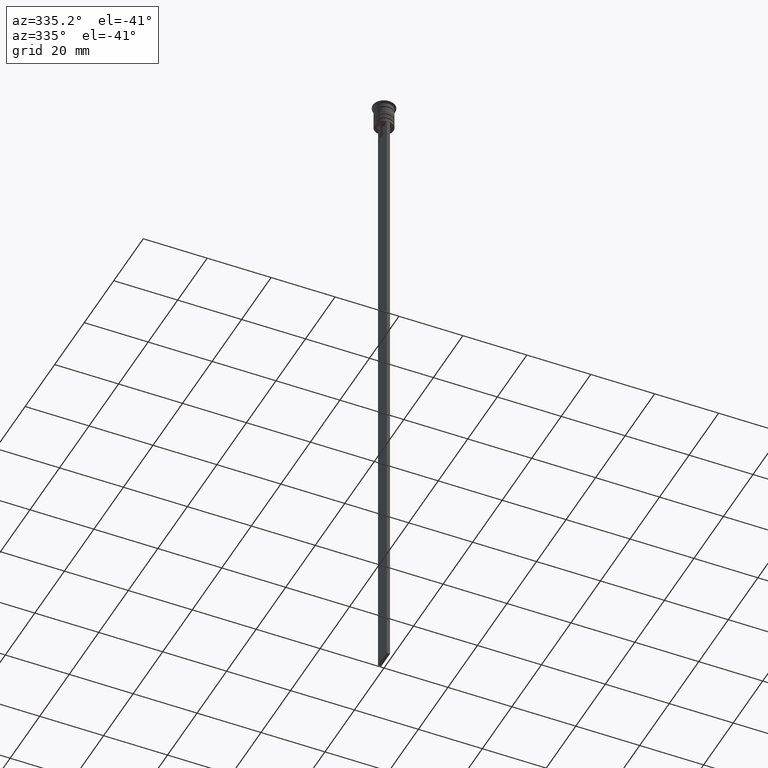
[diagram: clean part render]
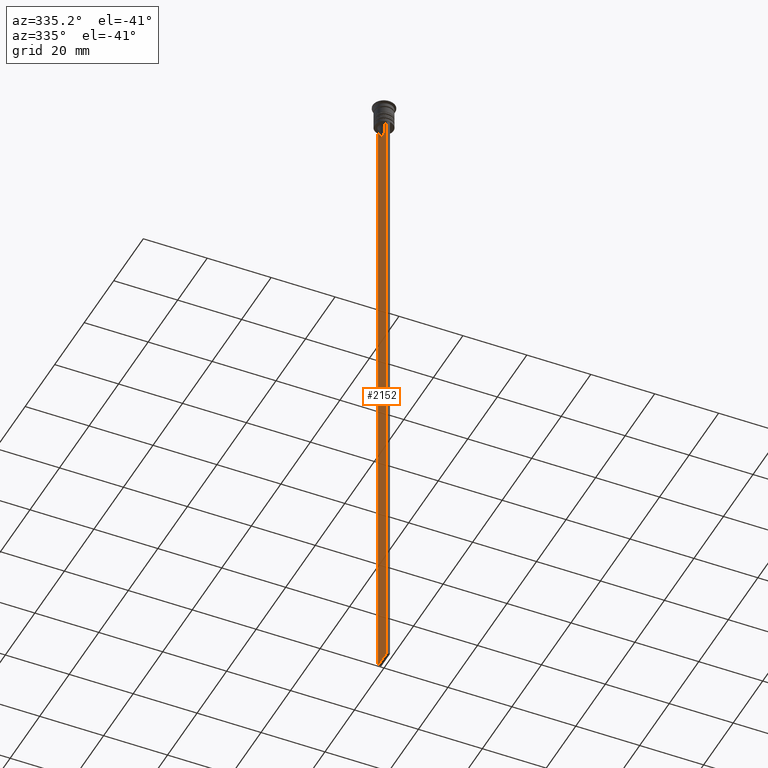
[diagram: same view with one face highlighted and labeled with its STEP entity id]
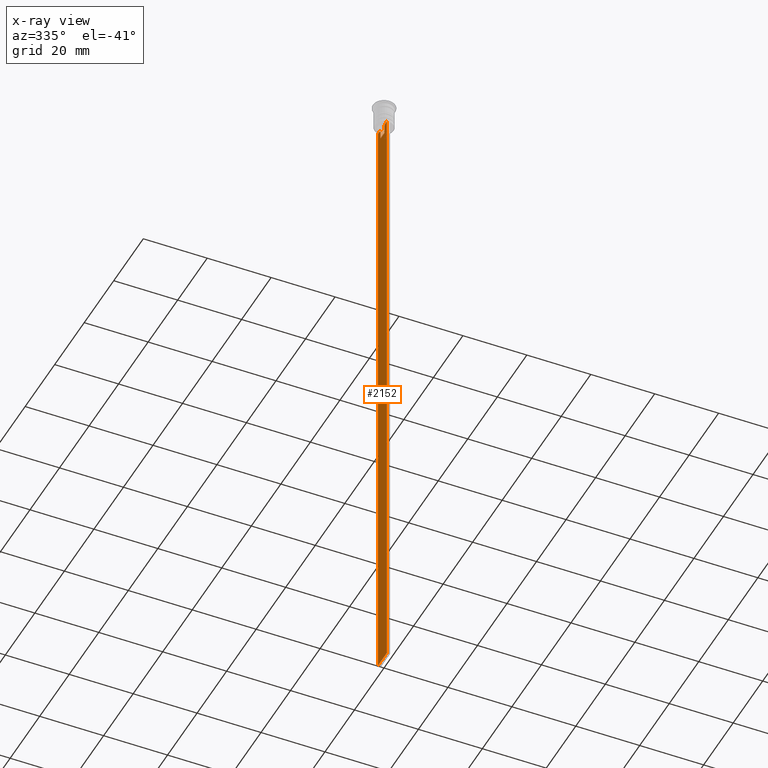
[diagram: x-ray of the same camera — body ghosted, the highlighted face saturated]
A machine part, auxiliary view. The second image highlights one B-rep face of the part: STEP entity #2152.
The next image is the same camera in x-ray: the body ghosted, the highlighted face saturated — about 0% of this face is hidden behind the body in this view.
In plain terms, the highlighted planar face has unit normal (-1, 0, 0).
Its self-contained STEP definition (entity closure, byte-faithful):
#56 = CARTESIAN_POINT ( 'NONE',  ( -0.5000000000000001110, 1.307669683062199217, -8.000000000000000000 ) ) ;
#90 = CARTESIAN_POINT ( 'NONE',  ( -0.5000000000000001110, -1.833030277982335532, -7.500000000000000000 ) ) ;
#105 = CARTESIAN_POINT ( 'NONE',  ( -0.5000000000000001110, 1.307669683062199217, -10.49999999999999822 ) ) ;
#111 = VERTEX_POINT ( 'NONE', #1236 ) ;
#112 = EDGE_CURVE ( 'NONE', #1044, #1480, #1401, .T. ) ;
#158 = CARTESIAN_POINT ( 'NONE',  ( -0.5000000000000001110, -3.000000000000000000, -7.500000000000000000 ) ) ;
#199 = B_SPLINE_CURVE_WITH_KNOTS ( 'NONE', 3,
 ( #1186, #786, #236, #90 ),
 .UNSPECIFIED., .F., .F.,
 ( 4, 4 ),
 ( 0.007225659348748070081, 0.007950554640278040958 ),
 .UNSPECIFIED. ) ;
#236 = CARTESIAN_POINT ( 'NONE',  ( -0.5000000000000001110, -1.659011726860414093, -7.667884880598472286 ) ) ;
#265 = DIRECTION ( 'NONE',  ( 0.000000000000000000, 0.000000000000000000, -1.000000000000000000 ) ) ;
#321 = VERTEX_POINT ( 'NONE', #1097 ) ;
#327 = EDGE_CURVE ( 'NONE', #1890, #321, #928, .T. ) ;
#358 = VERTEX_POINT ( 'NONE', #105 ) ;
#360 = VECTOR ( 'NONE', #709, 1000.000000000000000 ) ;
#373 = EDGE_CURVE ( 'NONE', #358, #1044, #1485, .T. ) ;
#401 = LINE ( 'NONE', #960, #2316 ) ;
#405 = VECTOR ( 'NONE', #2148, 1000.000000000000000 ) ;
#415 = VERTEX_POINT ( 'NONE', #633 ) ;
#483 = DIRECTION ( 'NONE',  ( 0.000000000000000000, -1.000000000000000000, 0.000000000000000000 ) ) ;
#498 = ORIENTED_EDGE ( 'NONE', *, *, #1168, .F. ) ;
#533 = CARTESIAN_POINT ( 'NONE',  ( -0.5000000000000001110, 3.000000000000000000, -1.417237469701779329 ) ) ;
#543 = ORIENTED_EDGE ( 'NONE', *, *, #1146, .F. ) ;
#584 = LINE ( 'NONE', #790, #1493 ) ;
#586 = EDGE_CURVE ( 'NONE', #1890, #2274, #1594, .T. ) ;
#605 = CARTESIAN_POINT ( 'NONE',  ( -0.5000000000000001110, -3.000000000000000000, -7.500000000000000000 ) ) ;
#606 = VERTEX_POINT ( 'NONE', #1571 ) ;
#632 = LINE ( 'NONE', #1882, #2244 ) ;
#633 = CARTESIAN_POINT ( 'NONE',  ( -0.5000000000000001110, -2.856571371417139904, -7.500000000000000000 ) ) ;
#639 = ORIENTED_EDGE ( 'NONE', *, *, #327, .T. ) ;
#679 = ORIENTED_EDGE ( 'NONE', *, *, #815, .F. ) ;
#709 = DIRECTION ( 'NONE',  ( 0.000000000000000000, -1.000000000000000000, 0.000000000000000000 ) ) ;
#710 = EDGE_LOOP ( 'NONE', ( #2284, #1847, #2029, #639, #543, #1280, #1670, #498, #1616, #1071, #2313, #679 ) ) ;
#726 = DIRECTION ( 'NONE',  ( 0.000000000000000000, 0.000000000000000000, -1.000000000000000000 ) ) ;
#731 = VECTOR ( 'NONE', #726, 1000.000000000000000 ) ;
#754 = LINE ( 'NONE', #605, #2237 ) ;
#786 = CARTESIAN_POINT ( 'NONE',  ( -0.5000000000000001110, -1.484307477388859153, -7.835011508197190722 ) ) ;
#790 = CARTESIAN_POINT ( 'NONE',  ( -0.5000000000000001110, 1.307669683062199217, 0.000000000000000000 ) ) ;
#815 = EDGE_CURVE ( 'NONE', #2048, #358, #584, .T. ) ;
#837 = DIRECTION ( 'NONE',  ( 0.000000000000000000, 0.000000000000000000, 1.000000000000000000 ) ) ;
#844 = DIRECTION ( 'NONE',  ( -0.000000000000000000, -0.000000000000000000, 1.000000000000000000 ) ) ;
#846 = AXIS2_PLACEMENT_3D ( 'NONE', #1507, #1323, #837 ) ;
#861 = CARTESIAN_POINT ( 'NONE',  ( -0.5000000000000001110, -1.307669683062199217, -10.49999999999999822 ) ) ;
#866 = CARTESIAN_POINT ( 'NONE',  ( -0.5000000000000001110, -1.307669683062199217, 0.000000000000000000 ) ) ;
#872 = LINE ( 'NONE', #1424, #405 ) ;
#928 = LINE ( 'NONE', #533, #731 ) ;
#945 = FACE_OUTER_BOUND ( 'NONE', #710, .T. ) ;
#960 = CARTESIAN_POINT ( 'NONE',  ( -0.5000000000000001110, -3.000000000000000000, -7.500000000000000000 ) ) ;
#1005 = CARTESIAN_POINT ( 'NONE',  ( -0.5000000000000001110, -3.000000000000000000, -7.500000000000000000 ) ) ;
#1019 = LINE ( 'NONE', #158, #360 ) ;
#1044 = VERTEX_POINT ( 'NONE', #861 ) ;
#1071 = ORIENTED_EDGE ( 'NONE', *, *, #112, .F. ) ;
#1097 = CARTESIAN_POINT ( 'NONE',  ( -0.5000000000000001110, 3.000000000000000000, -207.5000000000000284 ) ) ;
#1098 = CARTESIAN_POINT ( 'NONE',  ( -0.5000000000000001110, -1.307669683062199217, -8.000000000000000000 ) ) ;
#1146 = EDGE_CURVE ( 'NONE', #1389, #321, #872, .T. ) ;
#1160 = DIRECTION ( 'NONE',  ( 0.000000000000000000, -1.000000000000000000, 0.000000000000000000 ) ) ;
#1168 = EDGE_CURVE ( 'NONE', #1564, #415, #754, .T. ) ;
#1182 = VECTOR ( 'NONE', #483, 1000.000000000000000 ) ;
#1186 = CARTESIAN_POINT ( 'NONE',  ( -0.5000000000000001110, -1.307669683062199217, -8.000000000000000000 ) ) ;
#1236 = CARTESIAN_POINT ( 'NONE',  ( -0.5000000000000001110, -3.000000000000000000, -7.500000000000000000 ) ) ;
#1237 = CARTESIAN_POINT ( 'NONE',  ( -0.5000000000000001110, 1.659046061654642523, -7.667851756010361619 ) ) ;
#1280 = ORIENTED_EDGE ( 'NONE', *, *, #2064, .F. ) ;
#1320 = EDGE_CURVE ( 'NONE', #2274, #606, #1019, .T. ) ;
#1323 = DIRECTION ( 'NONE',  ( -1.000000000000000000, 0.000000000000000000, 0.000000000000000000 ) ) ;
#1337 = DIRECTION ( 'NONE',  ( 0.000000000000000000, -1.000000000000000000, 0.000000000000000000 ) ) ;
#1389 = VERTEX_POINT ( 'NONE', #2105 ) ;
#1401 = LINE ( 'NONE', #866, #2017 ) ;
#1403 = EDGE_CURVE ( 'NONE', #606, #2048, #1918, .T. ) ;
#1424 = CARTESIAN_POINT ( 'NONE',  ( -0.5000000000000001110, -3.000000000000000000, -207.5000000000000284 ) ) ;
#1437 = CARTESIAN_POINT ( 'NONE',  ( -0.5000000000000001110, 3.000000000000000000, -7.500000000000000000 ) ) ;
#1480 = VERTEX_POINT ( 'NONE', #1098 ) ;
#1485 = LINE ( 'NONE', #1518, #2279 ) ;
#1493 = VECTOR ( 'NONE', #1686, 1000.000000000000000 ) ;
#1507 = CARTESIAN_POINT ( 'NONE',  ( -0.5000000000000001110, -3.000000000000000000, -1.417237469701779329 ) ) ;
#1513 = DIRECTION ( 'NONE',  ( 0.000000000000000000, -1.000000000000000000, 0.000000000000000000 ) ) ;
#1518 = CARTESIAN_POINT ( 'NONE',  ( -0.5000000000000001110, 1.399999999999997691, -10.49999999999999822 ) ) ;
#1564 = VERTEX_POINT ( 'NONE', #2022 ) ;
#1571 = CARTESIAN_POINT ( 'NONE',  ( -0.5000000000000001110, 1.833030277982335532, -7.500000000000000000 ) ) ;
#1594 = LINE ( 'NONE', #1005, #1182 ) ;
#1616 = ORIENTED_EDGE ( 'NONE', *, *, #1669, .F. ) ;
#1669 = EDGE_CURVE ( 'NONE', #1480, #1564, #199, .T. ) ;
#1670 = ORIENTED_EDGE ( 'NONE', *, *, #2015, .F. ) ;
#1673 = PLANE ( 'NONE',  #846 ) ;
#1686 = DIRECTION ( 'NONE',  ( 0.000000000000000000, 0.000000000000000000, -1.000000000000000000 ) ) ;
#1795 = CARTESIAN_POINT ( 'NONE',  ( -0.5000000000000001110, 1.307669683062199217, -8.000000000000000000 ) ) ;
#1847 = ORIENTED_EDGE ( 'NONE', *, *, #1320, .F. ) ;
#1882 = CARTESIAN_POINT ( 'NONE',  ( -0.5000000000000001110, -3.000000000000000000, -1.417237469701779329 ) ) ;
#1890 = VERTEX_POINT ( 'NONE', #1437 ) ;
#1918 = B_SPLINE_CURVE_WITH_KNOTS ( 'NONE', 3,
 ( #2115, #1237, #1964, #1795 ),
 .UNSPECIFIED., .F., .F.,
 ( 4, 4 ),
 ( 0.003278537493109840491, 0.004003794023484932504 ),
 .UNSPECIFIED. ) ;
#1964 = CARTESIAN_POINT ( 'NONE',  ( -0.5000000000000001110, 1.484355510416485391, -7.834966642958598015 ) ) ;
#2015 = EDGE_CURVE ( 'NONE', #415, #111, #401, .T. ) ;
#2017 = VECTOR ( 'NONE', #844, 1000.000000000000000 ) ;
#2022 = CARTESIAN_POINT ( 'NONE',  ( -0.5000000000000001110, -1.833030277982335532, -7.500000000000000000 ) ) ;
#2029 = ORIENTED_EDGE ( 'NONE', *, *, #586, .F. ) ;
#2048 = VERTEX_POINT ( 'NONE', #56 ) ;
#2064 = EDGE_CURVE ( 'NONE', #111, #1389, #632, .T. ) ;
#2105 = CARTESIAN_POINT ( 'NONE',  ( -0.5000000000000001110, -3.000000000000000000, -207.5000000000000284 ) ) ;
#2115 = CARTESIAN_POINT ( 'NONE',  ( -0.5000000000000001110, 1.833030277982335532, -7.500000000000000000 ) ) ;
#2148 = DIRECTION ( 'NONE',  ( 0.000000000000000000, 1.000000000000000000, 0.000000000000000000 ) ) ;
#2152 = ADVANCED_FACE ( 'NONE', ( #945 ), #1673, .T. ) ;
#2190 = CARTESIAN_POINT ( 'NONE',  ( -0.5000000000000001110, 2.856571371417139904, -7.500000000000000000 ) ) ;
#2237 = VECTOR ( 'NONE', #1513, 1000.000000000000000 ) ;
#2244 = VECTOR ( 'NONE', #265, 1000.000000000000000 ) ;
#2274 = VERTEX_POINT ( 'NONE', #2190 ) ;
#2279 = VECTOR ( 'NONE', #1160, 1000.000000000000000 ) ;
#2284 = ORIENTED_EDGE ( 'NONE', *, *, #1403, .F. ) ;
#2313 = ORIENTED_EDGE ( 'NONE', *, *, #373, .F. ) ;
#2316 = VECTOR ( 'NONE', #1337, 1000.000000000000000 ) ;